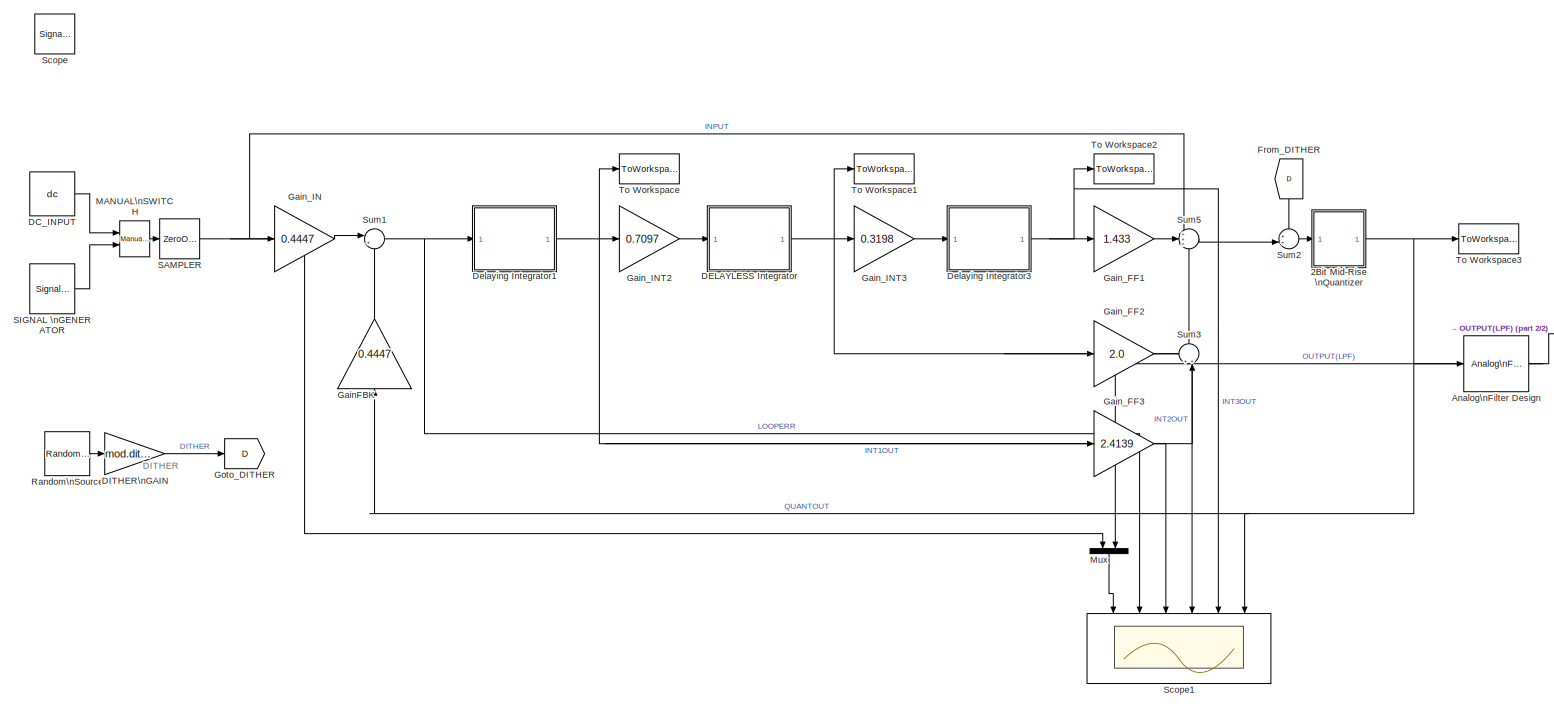
[diagram: root canvas - part 1/2, most of the canvas]
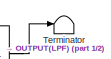
[diagram: root canvas - part 2/2, middle right region]
MODEL mod3_ciff_2bit
KIND model
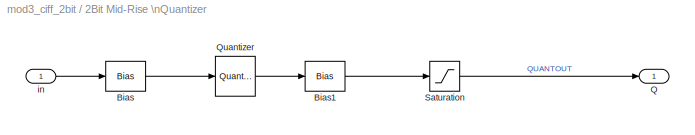
BLOCK [SubSystem] 2Bit Mid-Rise \nQuantizer
  FunctionWithSeparateData = off
  MaskHideContents = off
  MinAlgLoopOccurrences = off
  Opaque = off
  Ports = [1, 1]
  PropExecContextOutsideSubsystem = off
  RTWSystemCode = Auto
  RequestExecContextInheritance = off
  SID = 147
BLOCK [Bias] 2Bit Mid-Rise \nQuantizer/Bias
  AttributesFormatString = Need offset to give\\nMID-RISE quantiser
  Bias = 1/3
  SID = 149
  SaturateOnIntegerOverflow = off
BLOCK [Bias] 2Bit Mid-Rise \nQuantizer/Bias1
  Bias = -1/3
  SID = 150
  SaturateOnIntegerOverflow = off
BLOCK [Outport] 2Bit Mid-Rise \nQuantizer/Q
  IconDisplay = Port number
  SID = 153
BLOCK [Quantizer] 2Bit Mid-Rise \nQuantizer/Quantizer
  LinearizeAsGain = off
  QuantizationInterval = 2/3
  SID = 151
  SampleTime = 1/Fs
BLOCK [Saturate] 2Bit Mid-Rise \nQuantizer/Saturation
  InputPortMap = u0
  LowerLimit = -(mod.qsatout1)
  Ports = [1, 1]
  SID = 152
  UpperLimit = mod.qsatout1
BLOCK [Inport] 2Bit Mid-Rise \nQuantizer/in
  IconDisplay = Port number
  SID = 148
BLOCK [Reference] Analog\nFilter Design  REF=dsparch4/Analog\nFilter Design
  AttributesFormatString = Low-pass filter the loop output\\nto illustrate intuitively how the\\npulse density modulated +1/-1\\noutput stream does indeed capture\\nthe input signal
  N = 8
  Ports = [1, 1]
  Rp = 2
  Rs = 40
  SID = 130
  SourceBlock = dsparch4/Analog\nFilter Design
  SourceType = Analog Filter Design
  Whi = 80
  Wlo = pi*(Fs/OSR)
  filttype = Lowpass
  method = Butterworth
BLOCK [Constant] DC_INPUT
  OutDataTypeStr = double
  SID = 133
  SampleTime = 1/Fs
  Value = dc
  VectorParams1D = off
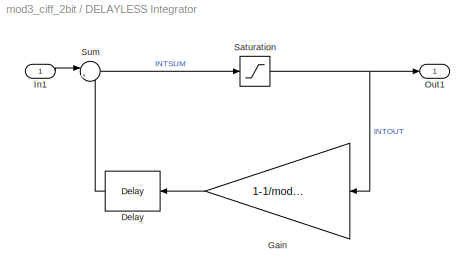
BLOCK [SubSystem] DELAYLESS Integrator
  FunctionWithSeparateData = off
  MaskHideContents = off
  MinAlgLoopOccurrences = off
  Opaque = off
  Ports = [1, 1]
  PropExecContextOutsideSubsystem = off
  RTWSystemCode = Auto
  RequestExecContextInheritance = off
  SID = 78
BLOCK [Reference] DELAYLESS Integrator/Delay  REF=dspsigops/Delay
  InputProcessing = Inherited (this choice will be removed - see release notes)
  Ports = [1, 1]
  SID = 80
  SourceBlock = dspsigops/Delay
  SourceType = Delay
  UserData = DataTag0
  UserDataPersistent = on
  delay = 1
  dif_ic_for_ch = off
  dif_ic_for_dly = off
  dly_unit = Samples
  ic = 0
  ic_detail = off
  reset_popup = None
BLOCK [Gain] DELAYLESS Integrator/Gain
  AttributesFormatString = Integrator leakage
  Gain = 1-1/mod.igain2
  OutDataTypeStr = Inherit: Inherit via internal rule
  ParamDataTypeStr = Inherit: Inherit via internal rule
  SID = 81
  SaturateOnIntegerOverflow = off
BLOCK [Inport] DELAYLESS Integrator/In1
  IconDisplay = Port number
  SID = 79
BLOCK [Outport] DELAYLESS Integrator/Out1
  IconDisplay = Port number
  SID = 84
BLOCK [Saturate] DELAYLESS Integrator/Saturation
  InputPortMap = u0
  LowerLimit = -(mod.isat2)
  Ports = [1, 1]
  SID = 82
  UpperLimit = mod.isat2
BLOCK [Sum] DELAYLESS Integrator/Sum
  AttributesFormatString = Integrator summer
  IconShape = round
  InputSameDT = off
  Inputs = |++
  OutDataTypeStr = Inherit: Inherit via internal rule
  Ports = [2, 1]
  SID = 83
  SaturateOnIntegerOverflow = off
BLOCK [Gain] DITHER\nGAIN
  Gain = mod.dither
  OutDataTypeStr = Inherit: Inherit via internal rule
  ParamDataTypeStr = Inherit: Inherit via internal rule
  SID = 124
  SampleTime = 1/Fs
  SaturateOnIntegerOverflow = off
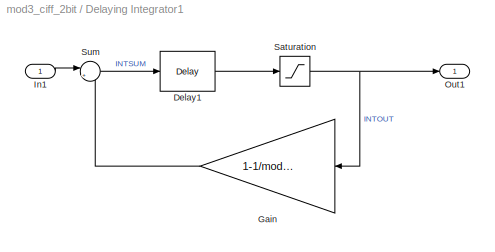
BLOCK [SubSystem] Delaying Integrator1
  FunctionWithSeparateData = off
  MaskHideContents = off
  MinAlgLoopOccurrences = off
  Opaque = off
  Ports = [1, 1]
  PropExecContextOutsideSubsystem = off
  RTWSystemCode = Auto
  RequestExecContextInheritance = off
  SID = 75
BLOCK [Reference] Delaying Integrator1/Delay1  REF=dspsigops/Delay
  InputProcessing = Inherited (this choice will be removed - see release notes)
  Ports = [1, 1]
  SID = 105
  SourceBlock = dspsigops/Delay
  SourceType = Delay
  UserData = DataTag1
  UserDataPersistent = on
  delay = 1
  dif_ic_for_ch = off
  dif_ic_for_dly = off
  dly_unit = Samples
  ic = 0
  ic_detail = off
  reset_popup = None
BLOCK [Gain] Delaying Integrator1/Gain
  AttributesFormatString = Integrator leakage
  Gain = 1-1/mod.igain1
  OutDataTypeStr = Inherit: Inherit via internal rule
  ParamDataTypeStr = Inherit: Inherit via internal rule
  SID = 32
  SaturateOnIntegerOverflow = off
BLOCK [Inport] Delaying Integrator1/In1
  IconDisplay = Port number
  SID = 77
BLOCK [Outport] Delaying Integrator1/Out1
  IconDisplay = Port number
  SID = 76
BLOCK [Saturate] Delaying Integrator1/Saturation
  InputPortMap = u0
  LowerLimit = -(mod.isat1)
  Ports = [1, 1]
  SID = 72
  UpperLimit = mod.isat1
BLOCK [Sum] Delaying Integrator1/Sum
  AttributesFormatString = Integrator summer
  IconShape = round
  InputSameDT = off
  Inputs = |++
  OutDataTypeStr = Inherit: Inherit via internal rule
  Ports = [2, 1]
  SID = 3
  SaturateOnIntegerOverflow = off
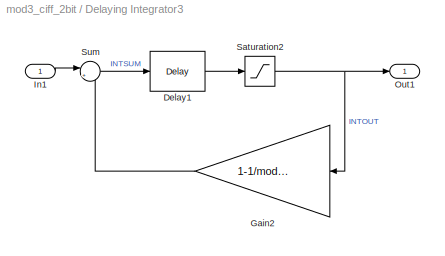
BLOCK [SubSystem] Delaying Integrator3
  FunctionWithSeparateData = off
  MaskHideContents = off
  MinAlgLoopOccurrences = off
  Opaque = off
  Ports = [1, 1]
  PropExecContextOutsideSubsystem = off
  RTWSystemCode = Auto
  RequestExecContextInheritance = off
  SID = 94
BLOCK [Reference] Delaying Integrator3/Delay1  REF=dspsigops/Delay
  InputProcessing = Inherited (this choice will be removed - see release notes)
  Ports = [1, 1]
  SID = 106
  SourceBlock = dspsigops/Delay
  SourceType = Delay
  UserData = DataTag2
  UserDataPersistent = on
  delay = 1
  dif_ic_for_ch = off
  dif_ic_for_dly = off
  dly_unit = Samples
  ic = 0
  ic_detail = off
  reset_popup = None
BLOCK [Gain] Delaying Integrator3/Gain2
  AttributesFormatString = Integrator leakage
  Gain = 1-1/mod.igain3
  OutDataTypeStr = Inherit: Inherit via internal rule
  ParamDataTypeStr = Inherit: Inherit via internal rule
  SID = 97
  SaturateOnIntegerOverflow = off
BLOCK [Inport] Delaying Integrator3/In1
  IconDisplay = Port number
  SID = 95
BLOCK [Outport] Delaying Integrator3/Out1
  IconDisplay = Port number
  SID = 100
BLOCK [Saturate] Delaying Integrator3/Saturation2
  InputPortMap = u0
  LowerLimit = -(mod.isat3)
  Ports = [1, 1]
  SID = 98
  UpperLimit = mod.isat3
BLOCK [Sum] Delaying Integrator3/Sum
  AttributesFormatString = Integrator summer
  IconShape = round
  InputSameDT = off
  Inputs = |++
  OutDataTypeStr = Inherit: Inherit via internal rule
  Ports = [2, 1]
  SID = 99
  SaturateOnIntegerOverflow = off
BLOCK [From] From_DITHER
  GotoTag = D
  SID = 128
BLOCK [Gain] GainFBK
  Gain = 0.4447
  OutDataTypeStr = Inherit: Inherit via internal rule
  ParamDataTypeStr = Inherit: Inherit via internal rule
  SID = 107
  SaturateOnIntegerOverflow = off
BLOCK [Gain] Gain_FF1
  Gain = 1.433
  OutDataTypeStr = Inherit: Inherit via internal rule
  ParamDataTypeStr = Inherit: Inherit via internal rule
  SID = 114
  SaturateOnIntegerOverflow = off
BLOCK [Gain] Gain_FF2
  Gain = 2.0
  OutDataTypeStr = Inherit: Inherit via internal rule
  ParamDataTypeStr = Inherit: Inherit via internal rule
  SID = 115
  SaturateOnIntegerOverflow = off
BLOCK [Gain] Gain_FF3
  Gain = 2.4139
  OutDataTypeStr = Inherit: Inherit via internal rule
  ParamDataTypeStr = Inherit: Inherit via internal rule
  SID = 116
  SaturateOnIntegerOverflow = off
BLOCK [Gain] Gain_IN
  Gain = 0.4447
  OutDataTypeStr = Inherit: Inherit via internal rule
  ParamDataTypeStr = Inherit: Inherit via internal rule
  SID = 109
  SaturateOnIntegerOverflow = off
BLOCK [Gain] Gain_INT2
  Gain = 0.7097
  OutDataTypeStr = Inherit: Inherit via internal rule
  ParamDataTypeStr = Inherit: Inherit via internal rule
  SID = 111
  SaturateOnIntegerOverflow = off
BLOCK [Gain] Gain_INT3
  Gain = 0.3198
  OutDataTypeStr = Inherit: Inherit via internal rule
  ParamDataTypeStr = Inherit: Inherit via internal rule
  SID = 112
  SaturateOnIntegerOverflow = off
BLOCK [Goto] Goto_DITHER
  GotoTag = D
  SID = 125
BLOCK [Reference] MANUAL\nSWITCH  REF=simulink/Signal\nRouting/Manual Switch
  AttributesFormatString = Double click to\\nselect the desired\\ninput
  Ports = [2, 1]
  SID = 134
  SourceBlock = simulink/Signal\nRouting/Manual Switch
  SourceType = Manual Switch
  action = 0
  sw = 0
  varsize = off
BLOCK [Mux] Mux
  DisplayOption = bar
  Inputs = 2
  Ports = [2, 1]
  SID = 144
BLOCK [Reference] Random\nSource  REF=dspsrcs4/Random\nSource
  CltLength = 12
  DataType = Double
  IsInherit = off
  MaxVal = 1
  MeanVal = 0
  MinVal = -1
  NormMethod = Ziggurat
  OutComplex = Real
  Ports = [0, 1]
  RepMode = Not repeatable
  SID = 126
  SampFrame = 1
  SampMode = Discrete
  SampTime = 1/Fs
  SourceBlock = dspsrcs4/Random\nSource
  SourceType = Random Source
  SrcType = Uniform
  UserData = DataTag3
  UserDataPersistent = on
  VarVal = 1
  rawSeed = 1
BLOCK [ZeroOrderHold] SAMPLER
  SID = 135
  SampleTime = 1/Fs
BLOCK [SignalGenerator] SIGNAL \nGENERATOR
  Amplitude = sinamp
  Frequency = sinfreq
  Ports = [0, 1]
  SID = 136
  VectorParams1D = off
BLOCK [SignalViewerScope] Scope
  IOType = viewer
  MaxDataPoints = 7500
  NumInputPorts = 4
  Ports = []
  RefreshTime = 0.035000
  SID = 117
  ShowDataMarkers = off
  ShowLegends = off
  YMax = 5~5~5~5
  YMin = -5~-5~-5~-5
  ZoomMode = xonly
BLOCK [Scope] Scope1
  DataFormat = StructureWithTime
  Floating = off
  NumInputPorts = 6
  Ports = [6]
  SID = 145
  SampleTime = 0
  ShowLegends = off
  TimeRange = 2.089895171320487e-05
  YMax = 0.8~1.6~0.4~0.3~0.3~1.1
  YMin = -0.8~-0.6~-0.4~-0.3~-0.3~-1.1
  ZoomMode = xonly
BLOCK [Sum] Sum1
  AttributesFormatString = Modulator input\\nloop servo error (input - fbk)
  IconShape = round
  InputSameDT = off
  Inputs = |+-
  OutDataTypeStr = Inherit: Inherit via internal rule
  Ports = [2, 1]
  SID = 7
  SampleTime = 1/Fs
  SaturateOnIntegerOverflow = off
BLOCK [Sum] Sum2
  IconShape = round
  InputSameDT = off
  Inputs = ++|
  OutDataTypeStr = Inherit: Inherit via internal rule
  Ports = [2, 1]
  SID = 129
  SaturateOnIntegerOverflow = off
BLOCK [Sum] Sum3
  IconShape = round
  InputSameDT = off
  Inputs = ++|
  OutDataTypeStr = Inherit: Inherit via internal rule
  Ports = [2, 1]
  SID = 113
  SaturateOnIntegerOverflow = off
BLOCK [Sum] Sum5
  IconShape = round
  InputSameDT = off
  Inputs = +++
  OutDataTypeStr = Inherit: Inherit via internal rule
  Ports = [3, 1]
  SID = 110
  SaturateOnIntegerOverflow = off
BLOCK [Terminator] Terminator
  SID = 131
BLOCK [ToWorkspace] To Workspace
  MaxDataPoints = inf
  Ports = [1]
  SID = 118
  SampleTime = -1
  VariableName = INT1OUT
BLOCK [ToWorkspace] To Workspace1
  MaxDataPoints = inf
  Ports = [1]
  SID = 119
  SampleTime = -1
  VariableName = INT2OUT
BLOCK [ToWorkspace] To Workspace2
  MaxDataPoints = inf
  Ports = [1]
  SID = 120
  SampleTime = -1
  VariableName = INT3OUT
BLOCK [ToWorkspace] To Workspace3
  AttributesFormatString = Export output to\\nworkspace for\\npost-processing
  MaxDataPoints = inf
  Ports = [1]
  SID = 132
  SampleTime = -1
  VariableName = mod_out
ANNOTATION (root): DITHER \n\n\n\n\n\n
LINE 2Bit Mid-Rise \nQuantizer/Bias1:1 -> 2Bit Mid-Rise \nQuantizer/Saturation:1
LINE 2Bit Mid-Rise \nQuantizer/Bias:1 -> 2Bit Mid-Rise \nQuantizer/Quantizer:1
LINE 2Bit Mid-Rise \nQuantizer/Quantizer:1 -> 2Bit Mid-Rise \nQuantizer/Bias1:1
LINE 2Bit Mid-Rise \nQuantizer/Saturation:1 -> 2Bit Mid-Rise \nQuantizer/Q:1
LINE 2Bit Mid-Rise \nQuantizer/in:1 -> 2Bit Mid-Rise \nQuantizer/Bias:1
NET 2Bit Mid-Rise \nQuantizer:1 -> Analog\nFilter Design:1, GainFBK:1, Scope1:6, To Workspace3:1
NET Analog\nFilter Design:1 -> Mux:2, Terminator:1
LINE DC_INPUT:1 -> MANUAL\nSWITCH:1
LINE DELAYLESS Integrator/Delay:1 -> DELAYLESS Integrator/Sum:2
LINE DELAYLESS Integrator/Gain:1 -> DELAYLESS Integrator/Delay:1
LINE DELAYLESS Integrator/In1:1 -> DELAYLESS Integrator/Sum:1
NET DELAYLESS Integrator/Saturation:1 -> DELAYLESS Integrator/Gain:1, DELAYLESS Integrator/Out1:1
LINE DELAYLESS Integrator/Sum:1 -> DELAYLESS Integrator/Saturation:1
NET DELAYLESS Integrator:1 -> Gain_FF2:1, Gain_INT3:1, Scope1:4, To Workspace1:1
LINE DITHER\nGAIN:1 -> Goto_DITHER:1
LINE Delaying Integrator1/Delay1:1 -> Delaying Integrator1/Saturation:1
LINE Delaying Integrator1/Gain:1 -> Delaying Integrator1/Sum:2
LINE Delaying Integrator1/In1:1 -> Delaying Integrator1/Sum:1
NET Delaying Integrator1/Saturation:1 -> Delaying Integrator1/Gain:1, Delaying Integrator1/Out1:1
LINE Delaying Integrator1/Sum:1 -> Delaying Integrator1/Delay1:1
NET Delaying Integrator1:1 -> Gain_FF3:1, Gain_INT2:1, Scope1:3, To Workspace:1
LINE Delaying Integrator3/Delay1:1 -> Delaying Integrator3/Saturation2:1
LINE Delaying Integrator3/Gain2:1 -> Delaying Integrator3/Sum:2
LINE Delaying Integrator3/In1:1 -> Delaying Integrator3/Sum:1
NET Delaying Integrator3/Saturation2:1 -> Delaying Integrator3/Gain2:1, Delaying Integrator3/Out1:1
LINE Delaying Integrator3/Sum:1 -> Delaying Integrator3/Delay1:1
NET Delaying Integrator3:1 -> Gain_FF1:1, Scope1:5, To Workspace2:1
LINE From_DITHER:1 -> Sum2:1
LINE GainFBK:1 -> Sum1:2
LINE Gain_FF1:1 -> Sum5:2
LINE Gain_FF2:1 -> Sum3:1
LINE Gain_FF3:1 -> Sum3:2
LINE Gain_IN:1 -> Sum1:1
LINE Gain_INT2:1 -> DELAYLESS Integrator:1
LINE Gain_INT3:1 -> Delaying Integrator3:1
LINE MANUAL\nSWITCH:1 -> SAMPLER:1
LINE Mux:1 -> Scope1:1
LINE Random\nSource:1 -> DITHER\nGAIN:1
NET SAMPLER:1 -> Gain_IN:1, Mux:1, Sum5:1
LINE SIGNAL \nGENERATOR:1 -> MANUAL\nSWITCH:2
NET Sum1:1 -> Delaying Integrator1:1, Scope1:2
LINE Sum2:1 -> 2Bit Mid-Rise \nQuantizer:1
LINE Sum3:1 -> Sum5:3
LINE Sum5:1 -> Sum2:2
note: NET lines group one-source signal fan-out (src -> all destinations, sorted); 1:1 wires keep LINE
